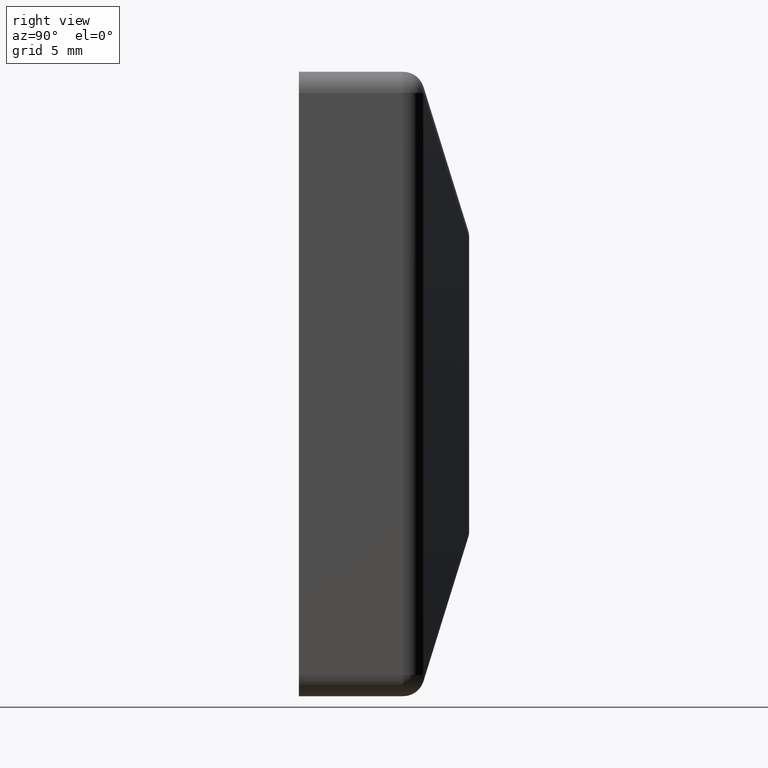
[diagram: clean part render]
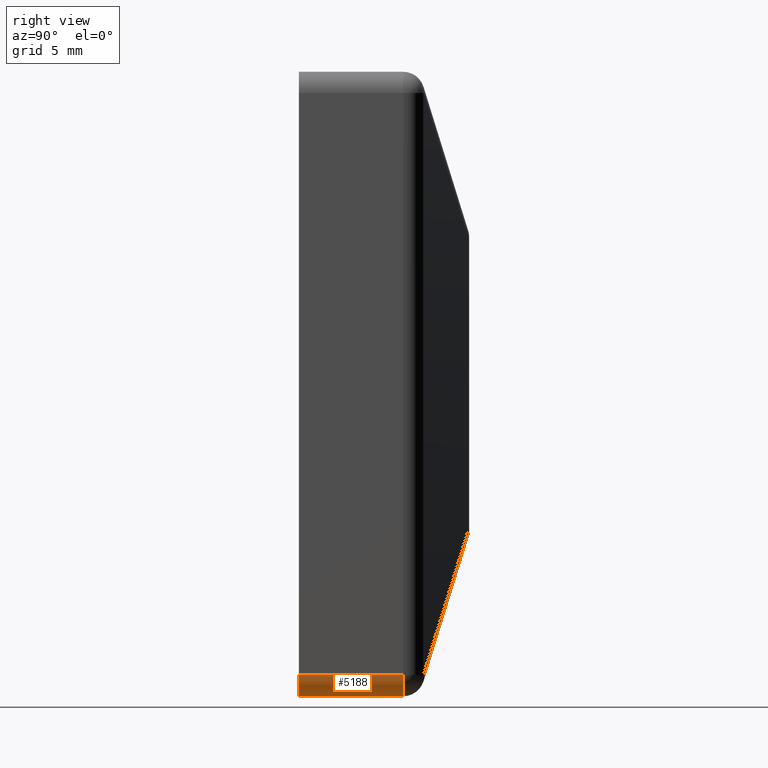
[diagram: same view with one face highlighted and labeled with its STEP entity id]
A machine part, right view. The second image highlights one B-rep face of the part: STEP entity #5188.
In plain terms, the highlighted cylindrical surface (edge-blend (fillet) strip) has radius 1.5 mm, axis along (0, -1, 0).
Its self-contained STEP definition (entity closure, byte-faithful):
#1163 = EDGE_CURVE ( 'NONE', #10963, #5137, #9088, .T. ) ;
#1719 = DIRECTION ( 'NONE',  ( 0.000000000000000000, 0.000000000000000000, -1.000000000000000000 ) ) ;
#2106 = ORIENTED_EDGE ( 'NONE', *, *, #12993, .F. ) ;
#2207 = CARTESIAN_POINT ( 'NONE',  ( 10.49999999999999645, 0.000000000000000000, -20.49999999999999645 ) ) ;
#3298 = DIRECTION ( 'NONE',  ( 0.000000000000000000, 0.000000000000000000, 1.000000000000000000 ) ) ;
#3433 = EDGE_CURVE ( 'NONE', #5137, #13981, #11457, .T. ) ;
#4002 = CARTESIAN_POINT ( 'NONE',  ( 10.49999999999999645, 30.00000000000000000, -20.49999999999999645 ) ) ;
#4644 = CARTESIAN_POINT ( 'NONE',  ( 10.49999999999999645, 7.350000000000001421, -20.49999999999999645 ) ) ;
#4940 = DIRECTION ( 'NONE',  ( 0.000000000000000000, -1.000000000000000000, 0.000000000000000000 ) ) ;
#5137 = VERTEX_POINT ( 'NONE', #11985 ) ;
#5188 = ADVANCED_FACE ( 'NONE', ( #13845 ), #5959, .T. ) ;
#5733 = DIRECTION ( 'NONE',  ( 0.000000000000000000, -1.000000000000000000, 0.000000000000000000 ) ) ;
#5797 = DIRECTION ( 'NONE',  ( -0.000000000000000000, 1.000000000000000000, 7.517135062566158817E-15 ) ) ;
#5959 = CYLINDRICAL_SURFACE ( 'NONE', #13622, 1.500000000000001332 ) ;
#6142 = CARTESIAN_POINT ( 'NONE',  ( 10.49999999999999645, 0.000000000000000000, -22.00000000000000000 ) ) ;
#6455 = CARTESIAN_POINT ( 'NONE',  ( 10.49999999999999645, 7.350000000000012967, -22.00000000000000000 ) ) ;
#6626 = EDGE_CURVE ( 'NONE', #13250, #10963, #13646, .T. ) ;
#7199 = ORIENTED_EDGE ( 'NONE', *, *, #3433, .F. ) ;
#7705 = ORIENTED_EDGE ( 'NONE', *, *, #6626, .F. ) ;
#8261 = VECTOR ( 'NONE', #5733, 1000.000000000000000 ) ;
#9088 = LINE ( 'NONE', #10307, #14056 ) ;
#9855 = DIRECTION ( 'NONE',  ( -0.000000000000000000, -1.000000000000000000, -0.000000000000000000 ) ) ;
#10174 = CARTESIAN_POINT ( 'NONE',  ( 10.49999999999999645, 30.00000000000000000, -22.00000000000000000 ) ) ;
#10307 = CARTESIAN_POINT ( 'NONE',  ( 11.99999999999999645, 30.00000000000000000, -20.49999999999999645 ) ) ;
#10575 = CARTESIAN_POINT ( 'NONE',  ( 11.99999999999999645, 0.000000000000000000, -20.49999999999999645 ) ) ;
#10867 = ORIENTED_EDGE ( 'NONE', *, *, #1163, .F. ) ;
#10963 = VERTEX_POINT ( 'NONE', #10575 ) ;
#11038 = AXIS2_PLACEMENT_3D ( 'NONE', #4644, #5797, #11222 ) ;
#11222 = DIRECTION ( 'NONE',  ( 0.000000000000000000, -7.517135062566157239E-15, 1.000000000000000000 ) ) ;
#11264 = AXIS2_PLACEMENT_3D ( 'NONE', #2207, #9855, #3298 ) ;
#11457 = CIRCLE ( 'NONE', #11038, 1.500000000000001332 ) ;
#11898 = EDGE_LOOP ( 'NONE', ( #7705, #2106, #7199, #10867 ) ) ;
#11985 = CARTESIAN_POINT ( 'NONE',  ( 12.00000000000001954, 7.350000000000001421, -20.49999999999999645 ) ) ;
#12044 = LINE ( 'NONE', #10174, #8261 ) ;
#12993 = EDGE_CURVE ( 'NONE', #13981, #13250, #12044, .T. ) ;
#13250 = VERTEX_POINT ( 'NONE', #6142 ) ;
#13429 = DIRECTION ( 'NONE',  ( -0.000000000000000000, 1.000000000000000000, -0.000000000000000000 ) ) ;
#13622 = AXIS2_PLACEMENT_3D ( 'NONE', #4002, #4940, #1719 ) ;
#13646 = CIRCLE ( 'NONE', #11264, 1.500000000000001332 ) ;
#13845 = FACE_OUTER_BOUND ( 'NONE', #11898, .T. ) ;
#13981 = VERTEX_POINT ( 'NONE', #6455 ) ;
#14056 = VECTOR ( 'NONE', #13429, 1000.000000000000000 ) ;